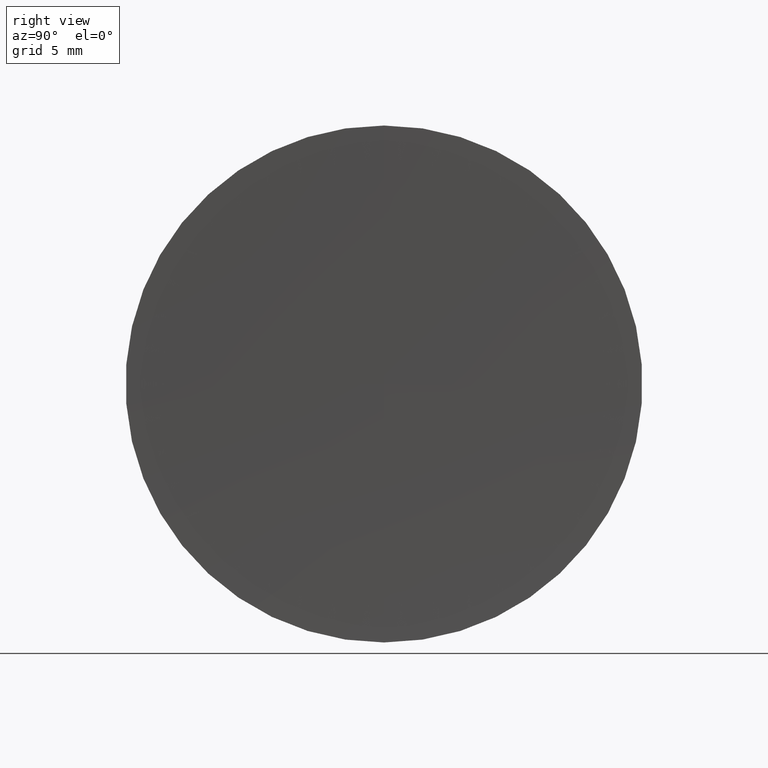
[diagram: clean part render]
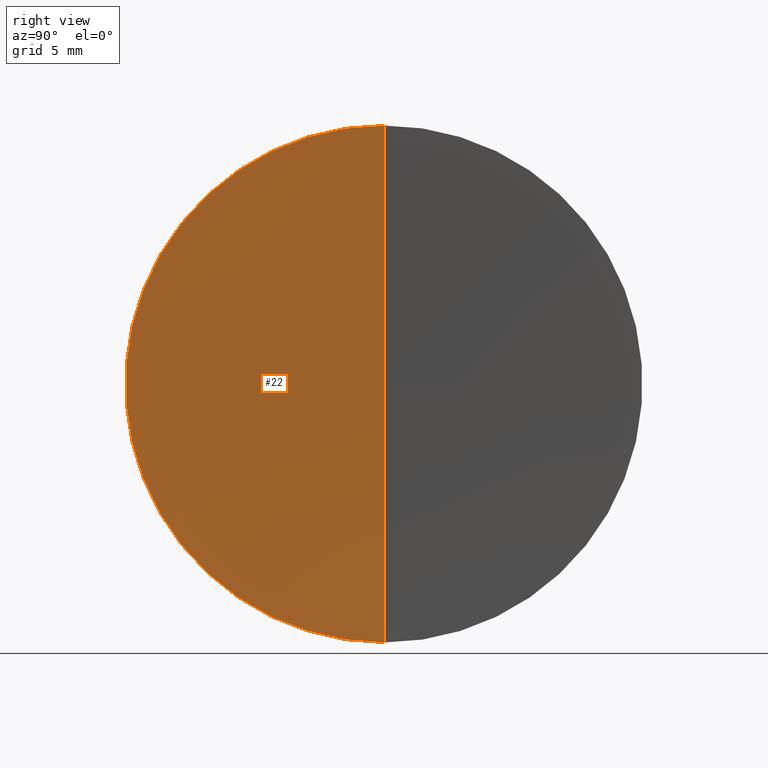
[diagram: same view with one face highlighted and labeled with its STEP entity id]
A machine part, right view. The second image highlights one B-rep face of the part: STEP entity #22.
In plain terms, the highlighted toroidal blend (fillet) surface has major radius 0.5881 mm and minor (blend) radius 516.5 mm.
Its self-contained STEP definition (entity closure, byte-faithful):
#8 = DIRECTION ( 'NONE',  ( -1.000000000000000000, -0.0000000000000000000, -0.0000000000000000000 ) ) ;
#13 = DIRECTION ( 'NONE',  ( 0.0000000000000000000, -1.209100583449468600E-016, 1.000000000000000000 ) ) ;
#17 = VERTEX_POINT ( 'NONE', #135 ) ;
#20 = EDGE_CURVE ( 'NONE', #166, #17, #38, .T. ) ;
#22 = ADVANCED_FACE ( 'NONE', ( #131 ), #96, .F. ) ;
#29 = AXIS2_PLACEMENT_3D ( 'NONE', #69, #112, #13 ) ;
#31 = DIRECTION ( 'NONE',  ( 0.0000000000000000000, -1.000000000000000000, 0.0000000000000000000 ) ) ;
#38 = CIRCLE ( 'NONE', #67, 516.5000000000000000 ) ;
#41 = ORIENTED_EDGE ( 'NONE', *, *, #79, .T. ) ;
#44 = CARTESIAN_POINT ( 'NONE',  ( 576.0320022231961700, 32.61076812922678400, 0.0000000000000000000 ) ) ;
#51 = DIRECTION ( 'NONE',  ( 0.0000000000000000000, 0.0000000000000000000, 1.000000000000000000 ) ) ;
#55 = CIRCLE ( 'NONE', #151, 12.49999999999999600 ) ;
#67 = AXIS2_PLACEMENT_3D ( 'NONE', #120, #31, #132 ) ;
#69 = CARTESIAN_POINT ( 'NONE',  ( 576.0320022231961700, 32.61076812922678400, -0.5881144325349321200 ) ) ;
#75 = CARTESIAN_POINT ( 'NONE',  ( 59.66938062648569000, 32.61076812922678400, 0.0000000000000000000 ) ) ;
#79 = EDGE_CURVE ( 'NONE', #128, #17, #119, .T. ) ;
#83 = CARTESIAN_POINT ( 'NONE',  ( 59.66938062648566200, 32.61076812922678400, 12.49999999999684200 ) ) ;
#89 = AXIS2_PLACEMENT_3D ( 'NONE', #44, #8, #97 ) ;
#96 = TOROIDAL_SURFACE ( 'NONE', #89, 0.5881144325349321200, 516.5000000000000000 ) ;
#97 = DIRECTION ( 'NONE',  ( 0.0000000000000000000, 0.0000000000000000000, 1.000000000000000000 ) ) ;
#112 = DIRECTION ( 'NONE',  ( -0.0000000000000000000, 1.000000000000000000, 1.224646799147353200E-016 ) ) ;
#115 = ORIENTED_EDGE ( 'NONE', *, *, #159, .F. ) ;
#119 = CIRCLE ( 'NONE', #29, 516.5000000000000000 ) ;
#120 = CARTESIAN_POINT ( 'NONE',  ( 576.0320022231961700, 32.61076812922678400, 0.5881144325349321200 ) ) ;
#128 = VERTEX_POINT ( 'NONE', #149 ) ;
#131 = FACE_OUTER_BOUND ( 'NONE', #139, .T. ) ;
#132 = DIRECTION ( 'NONE',  ( 0.0000000000000000000, 0.0000000000000000000, -1.000000000000000000 ) ) ;
#133 = ORIENTED_EDGE ( 'NONE', *, *, #20, .F. ) ;
#135 = CARTESIAN_POINT ( 'NONE',  ( 59.53233705252625200, 32.61076812922678400, 0.0000000000000000000 ) ) ;
#139 = EDGE_LOOP ( 'NONE', ( #115, #41, #133 ) ) ;
#147 = DIRECTION ( 'NONE',  ( -1.000000000000000000, -0.0000000000000000000, -0.0000000000000000000 ) ) ;
#149 = CARTESIAN_POINT ( 'NONE',  ( 59.66938062648566200, 32.61076812922678400, -12.49999999999684200 ) ) ;
#151 = AXIS2_PLACEMENT_3D ( 'NONE', #75, #147, #51 ) ;
#159 = EDGE_CURVE ( 'NONE', #128, #166, #55, .T. ) ;
#166 = VERTEX_POINT ( 'NONE', #83 ) ;